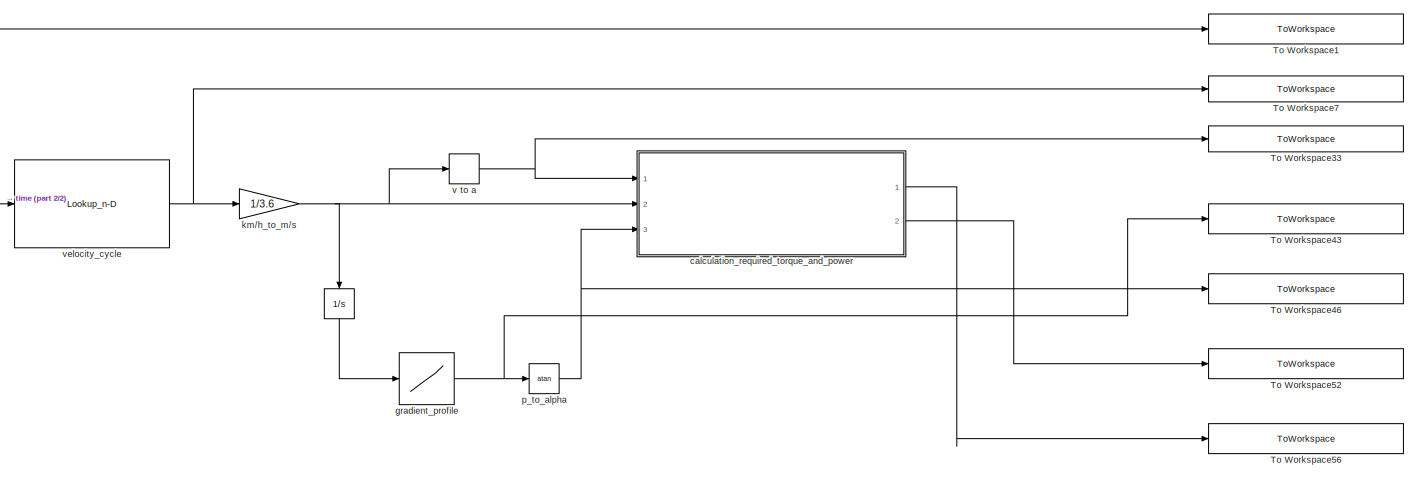
[diagram: root canvas - part 1/2, most of the canvas]
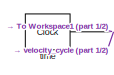
[diagram: root canvas - part 2/2, middle left region]
MODEL slx_def04f5627b5
KIND model
CONFIG AbsTol = auto
CONFIG EnableMultiTasking = off
CONFIG FixedStep = auto
CONFIG MaxStep = auto
CONFIG MinStep = auto
CONFIG RelTol = 1e-3
CONFIG SampleTimeConstraint = Unconstrained
CONFIG Solver = VariableStepAuto
CONFIG SolverName = VariableStepAuto
CONFIG StartTime = 0.0
CONFIG StopTime = 30
BLOCK [Integrator]     
  Ports = [1, 1]
BLOCK [ToWorkspace] To Workspace1
  MaxDataPoints = inf
  Ports = [1]
  SampleTime = -1
  VariableName = time
BLOCK [ToWorkspace] To Workspace33
  MaxDataPoints = inf
  Ports = [1]
  SampleTime = -1
  VariableName = CYC_a
BLOCK [ToWorkspace] To Workspace43
  MaxDataPoints = inf
  Ports = [1]
  SampleTime = -1
  VariableName = CYC_gradient
BLOCK [ToWorkspace] To Workspace46
  MaxDataPoints = inf
  Ports = [1]
  SampleTime = -1
  VariableName = CYC_alpha
BLOCK [ToWorkspace] To Workspace52
  MaxDataPoints = inf
  Ports = [1]
  SampleTime = -1
  VariableName = VEH_p_req
BLOCK [ToWorkspace] To Workspace56
  MaxDataPoints = inf
  Ports = [1]
  SampleTime = -1
  VariableName = VEH_Torque
BLOCK [ToWorkspace] To Workspace7
  MaxDataPoints = inf
  Ports = [1]
  SampleTime = -1
  VariableName = CYC_v
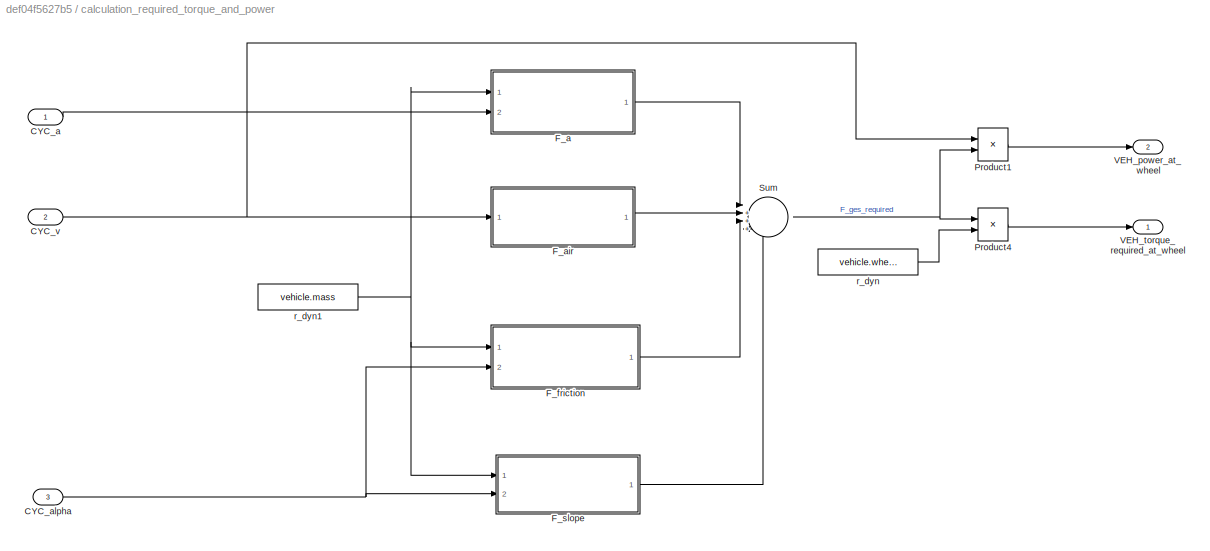
BLOCK [SubSystem] calculation_required_torque_and_power
  Ports = [3, 2]
  RequestExecContextInheritance = off
  Variant = off
BLOCK [Inport] calculation_required_torque_and_power/CYC_a
  IconDisplay = Port number
BLOCK [Inport] calculation_required_torque_and_power/CYC_alpha
  IconDisplay = Port number
  Port = 3
BLOCK [Inport] calculation_required_torque_and_power/CYC_v
  IconDisplay = Port number
  Port = 2
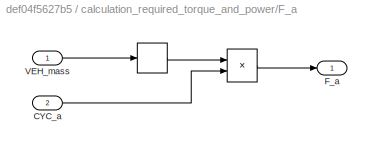
BLOCK [SubSystem] calculation_required_torque_and_power/F_a
  Ports = [2, 1]
  RequestExecContextInheritance = off
  Variant = off
BLOCK [Memory] calculation_required_torque_and_power/F_a/ 
BLOCK [Product] calculation_required_torque_and_power/F_a/  
  InputSameDT = off
  OutDataTypeStr = Inherit: Inherit via internal rule
  Ports = [2, 1]
  SaturateOnIntegerOverflow = off
BLOCK [Inport] calculation_required_torque_and_power/F_a/CYC_a
  IconDisplay = Port number
  Port = 2
BLOCK [Outport] calculation_required_torque_and_power/F_a/F_a
  IconDisplay = Port number
BLOCK [Inport] calculation_required_torque_and_power/F_a/VEH_mass
  IconDisplay = Port number
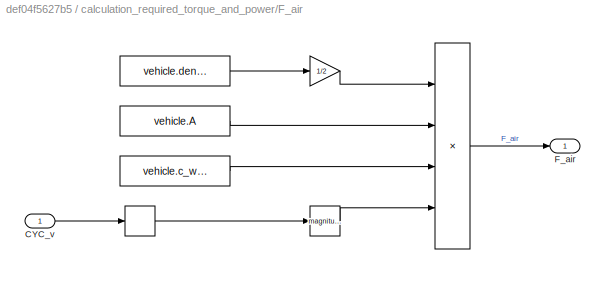
BLOCK [SubSystem] calculation_required_torque_and_power/F_air
  Ports = [1, 1]
  RequestExecContextInheritance = off
  Variant = off
BLOCK [Constant] calculation_required_torque_and_power/F_air/ 
  Value = vehicle.c_w(1,1)
BLOCK [Memory] calculation_required_torque_and_power/F_air/  
BLOCK [Math] calculation_required_torque_and_power/F_air/   
  Operator = magnitude^2
  Ports = [1, 1]
BLOCK [Product] calculation_required_torque_and_power/F_air/    
  InputSameDT = off
  Inputs = 4
  OutDataTypeStr = Inherit: Inherit via internal rule
  Ports = [4, 1]
  SaturateOnIntegerOverflow = off
BLOCK [Inport] calculation_required_torque_and_power/F_air/CYC_v
  IconDisplay = Port number
BLOCK [Outport] calculation_required_torque_and_power/F_air/F_air
  IconDisplay = Port number
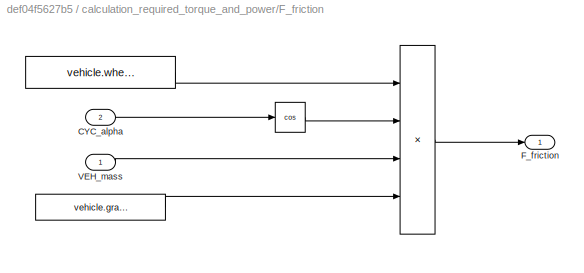
BLOCK [SubSystem] calculation_required_torque_and_power/F_friction
  Ports = [2, 1]
  RequestExecContextInheritance = off
  Variant = off
BLOCK [Constant] calculation_required_torque_and_power/F_friction/ 
  Value = vehicle.wheel.roll_resistance
BLOCK [Constant] calculation_required_torque_and_power/F_friction/  
  Value = vehicle.gravity_constant
BLOCK [Product] calculation_required_torque_and_power/F_friction/   
  InputSameDT = off
  Inputs = 4
  OutDataTypeStr = Inherit: Inherit via internal rule
  Ports = [4, 1]
  SaturateOnIntegerOverflow = off
BLOCK [Inport] calculation_required_torque_and_power/F_friction/CYC_alpha
  IconDisplay = Port number
  Port = 2
BLOCK [Outport] calculation_required_torque_and_power/F_friction/F_friction
  IconDisplay = Port number
BLOCK [Inport] calculation_required_torque_and_power/F_friction/VEH_mass
  IconDisplay = Port number
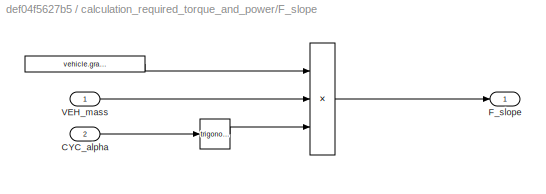
BLOCK [SubSystem] calculation_required_torque_and_power/F_slope 
  Ports = [2, 1]
  RequestExecContextInheritance = off
  Variant = off
BLOCK [Trigonometry] calculation_required_torque_and_power/F_slope / 
  Ports = [1, 1]
BLOCK [Constant] calculation_required_torque_and_power/F_slope /  
  Value = vehicle.gravity_constant
BLOCK [Product] calculation_required_torque_and_power/F_slope /    
  InputSameDT = off
  Inputs = 3
  OutDataTypeStr = Inherit: Inherit via internal rule
  Ports = [3, 1]
  SaturateOnIntegerOverflow = off
BLOCK [Inport] calculation_required_torque_and_power/F_slope /CYC_alpha
  IconDisplay = Port number
  Port = 2
BLOCK [Outport] calculation_required_torque_and_power/F_slope /F_slope
  IconDisplay = Port number
BLOCK [Inport] calculation_required_torque_and_power/F_slope /VEH_mass
  IconDisplay = Port number
BLOCK [Product] calculation_required_torque_and_power/Product1
  InputSameDT = off
  OutDataTypeStr = Inherit: Inherit via internal rule
  Ports = [2, 1]
  SaturateOnIntegerOverflow = off
BLOCK [Product] calculation_required_torque_and_power/Product4
  InputSameDT = off
  OutDataTypeStr = Inherit: Inherit via internal rule
  Ports = [2, 1]
  SaturateOnIntegerOverflow = off
BLOCK [Sum] calculation_required_torque_and_power/Sum
  IconShape = round
  InputSameDT = off
  Inputs = |++++
  OutDataTypeStr = Inherit: Inherit via internal rule
  Ports = [4, 1]
  SaturateOnIntegerOverflow = off
BLOCK [Outport] calculation_required_torque_and_power/VEH_power_at_wheel
  IconDisplay = Port number
  Port = 2
BLOCK [Outport] calculation_required_torque_and_power/VEH_torque_required_at_wheel
  IconDisplay = Port number
BLOCK [Constant] calculation_required_torque_and_power/r_dyn
  Value = vehicle.wheel.r_dyn
BLOCK [Constant] calculation_required_torque_and_power/r_dyn1
  Value = vehicle.mass
BLOCK [Lookup] gradient_profile
  InputValues = cycle.gradient_vs_distance(:,1)
  Table = cycle.gradient_vs_distance(:,2)
BLOCK [Gain] km//h_to_m//s
  Gain = 1/3.6
  OutDataTypeStr = Inherit: Inherit via internal rule
  ParamDataTypeStr = Inherit: Inherit via internal rule
  SaturateOnIntegerOverflow = off
BLOCK [Trigonometry] p_to_alpha
  Operator = atan
  Ports = [1, 1]
BLOCK [Clock] time
  DisplayTime = on
BLOCK [Derivative] v to a 
BLOCK [Lookup_n-D] velocity_cycle
  BreakpointsForDimension1 = cycle.speed(:,1)
  NumberOfTableDimensions = 1
  Ports = [1, 1]
  RndMeth = Simplest
  Table = cycle.speed(:,2)
LINE     :1 -> gradient_profile:1
LINE calculation_required_torque_and_power/CYC_a:1 -> calculation_required_torque_and_power/F_a:2
NET calculation_required_torque_and_power/CYC_alpha:1 -> calculation_required_torque_and_power/F_friction:2, calculation_required_torque_and_power/F_slope :2
NET calculation_required_torque_and_power/CYC_v:1 -> calculation_required_torque_and_power/F_air:1, calculation_required_torque_and_power/Product1:1
LINE calculation_required_torque_and_power/F_a/  :1 -> calculation_required_torque_and_power/F_a/F_a:1
LINE calculation_required_torque_and_power/F_a/ :1 -> calculation_required_torque_and_power/F_a/  :1
LINE calculation_required_torque_and_power/F_a/CYC_a:1 -> calculation_required_torque_and_power/F_a/  :2
LINE calculation_required_torque_and_power/F_a/VEH_mass:1 -> calculation_required_torque_and_power/F_a/ :1
LINE calculation_required_torque_and_power/F_a:1 -> calculation_required_torque_and_power/Sum:1
LINE calculation_required_torque_and_power/F_air/    :1 -> calculation_required_torque_and_power/F_air/F_air:1
LINE calculation_required_torque_and_power/F_air/   :1 -> calculation_required_torque_and_power/F_air/    :4
LINE calculation_required_torque_and_power/F_air/  :1 -> calculation_required_torque_and_power/F_air/   :1
NET calculation_required_torque_and_power/F_air/ :1 -> calculation_required_torque_and_power/F_air/    :1, calculation_required_torque_and_power/F_air/    :2, calculation_required_torque_and_power/F_air/    :3, calculation_required_torque_and_power/F_air/ :1
LINE calculation_required_torque_and_power/F_air/CYC_v:1 -> calculation_required_torque_and_power/F_air/  :1
LINE calculation_required_torque_and_power/F_air:1 -> calculation_required_torque_and_power/Sum:2
LINE calculation_required_torque_and_power/F_friction/   :1 -> calculation_required_torque_and_power/F_friction/F_friction:1
LINE calculation_required_torque_and_power/F_friction/  :1 -> calculation_required_torque_and_power/F_friction/   :4
NET calculation_required_torque_and_power/F_friction/ :1 -> calculation_required_torque_and_power/F_friction/   :1, calculation_required_torque_and_power/F_friction/   :2
LINE calculation_required_torque_and_power/F_friction/CYC_alpha:1 -> calculation_required_torque_and_power/F_friction/ :1
LINE calculation_required_torque_and_power/F_friction/VEH_mass:1 -> calculation_required_torque_and_power/F_friction/   :3
LINE calculation_required_torque_and_power/F_friction:1 -> calculation_required_torque_and_power/Sum:3
LINE calculation_required_torque_and_power/F_slope /    :1 -> calculation_required_torque_and_power/F_slope /F_slope:1
LINE calculation_required_torque_and_power/F_slope /  :1 -> calculation_required_torque_and_power/F_slope /    :1
LINE calculation_required_torque_and_power/F_slope / :1 -> calculation_required_torque_and_power/F_slope /    :3
LINE calculation_required_torque_and_power/F_slope /CYC_alpha:1 -> calculation_required_torque_and_power/F_slope / :1
LINE calculation_required_torque_and_power/F_slope /VEH_mass:1 -> calculation_required_torque_and_power/F_slope /    :2
LINE calculation_required_torque_and_power/F_slope :1 -> calculation_required_torque_and_power/Sum:4
LINE calculation_required_torque_and_power/Product1:1 -> calculation_required_torque_and_power/VEH_power_at_wheel:1
LINE calculation_required_torque_and_power/Product4:1 -> calculation_required_torque_and_power/VEH_torque_required_at_wheel:1
NET calculation_required_torque_and_power/Sum:1 -> calculation_required_torque_and_power/Product1:2, calculation_required_torque_and_power/Product4:1
NET calculation_required_torque_and_power/r_dyn1:1 -> calculation_required_torque_and_power/F_a:1, calculation_required_torque_and_power/F_friction:1, calculation_required_torque_and_power/F_slope :1
LINE calculation_required_torque_and_power/r_dyn:1 -> calculation_required_torque_and_power/Product4:2
LINE calculation_required_torque_and_power:1 -> To Workspace56:1
LINE calculation_required_torque_and_power:2 -> To Workspace52:1
NET gradient_profile:1 -> To Workspace43:1, p_to_alpha:1
NET km//h_to_m//s:1 ->     :1, calculation_required_torque_and_power:2, v to a :1
NET p_to_alpha:1 -> To Workspace46:1, calculation_required_torque_and_power:3
NET time:1 -> To Workspace1:1, velocity_cycle:1
NET v to a :1 -> To Workspace33:1, calculation_required_torque_and_power:1
NET velocity_cycle:1 -> To Workspace7:1, km//h_to_m//s:1
note: NET lines group one-source signal fan-out (src -> all destinations, sorted); 1:1 wires keep LINE
